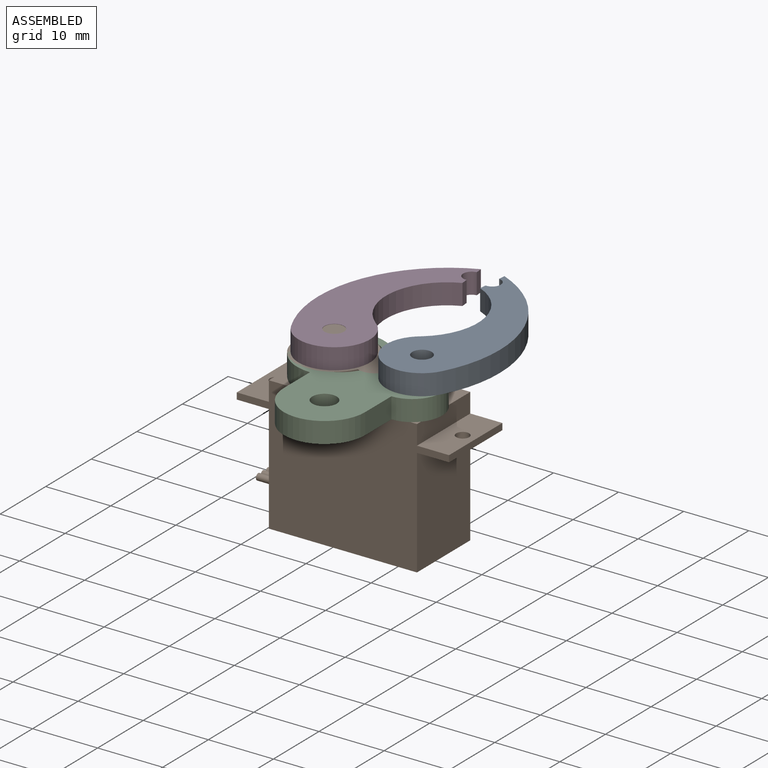
[diagram: assembled view]
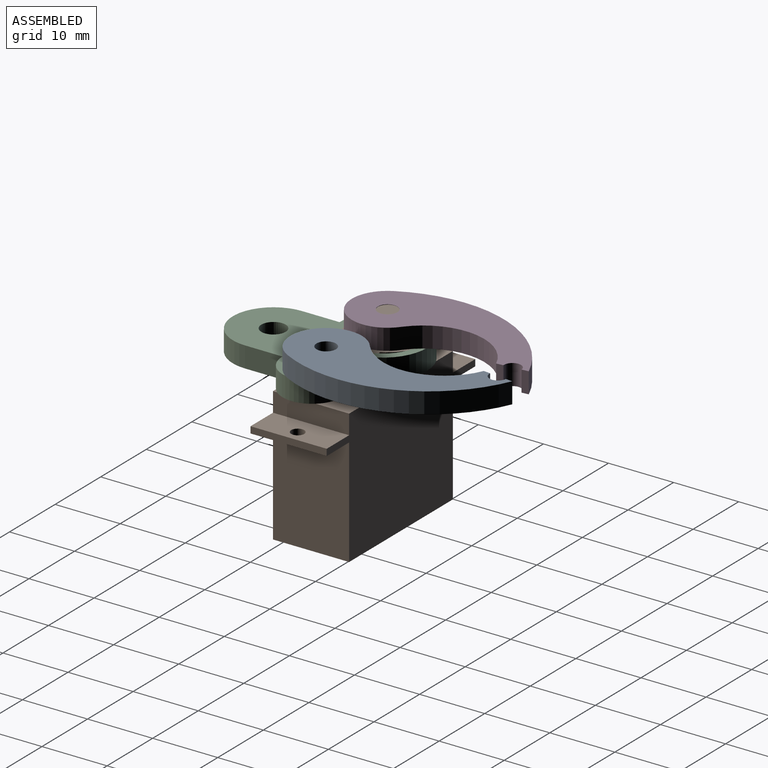
[diagram: assembled view, second angle]
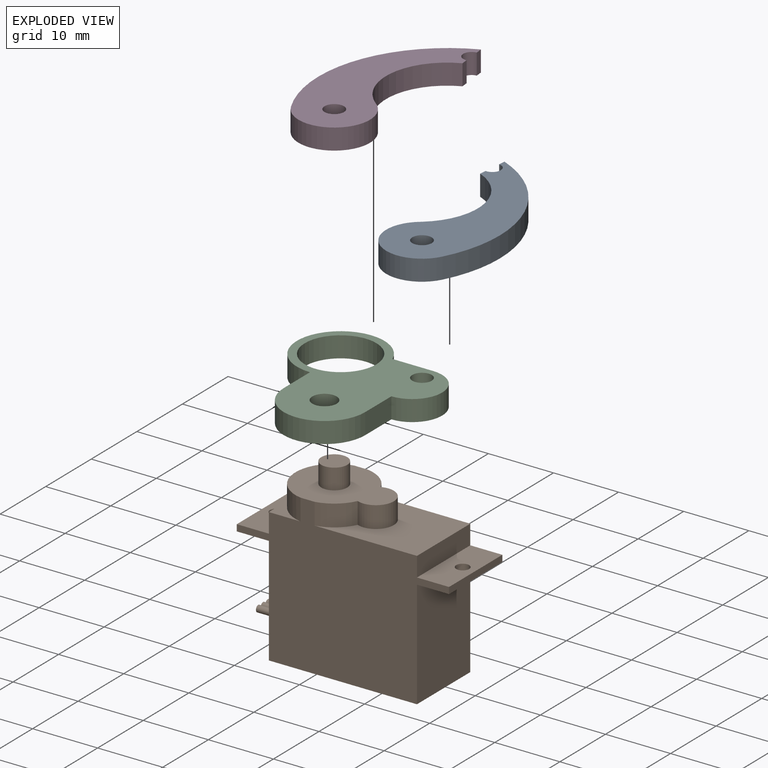
[diagram: exploded view]
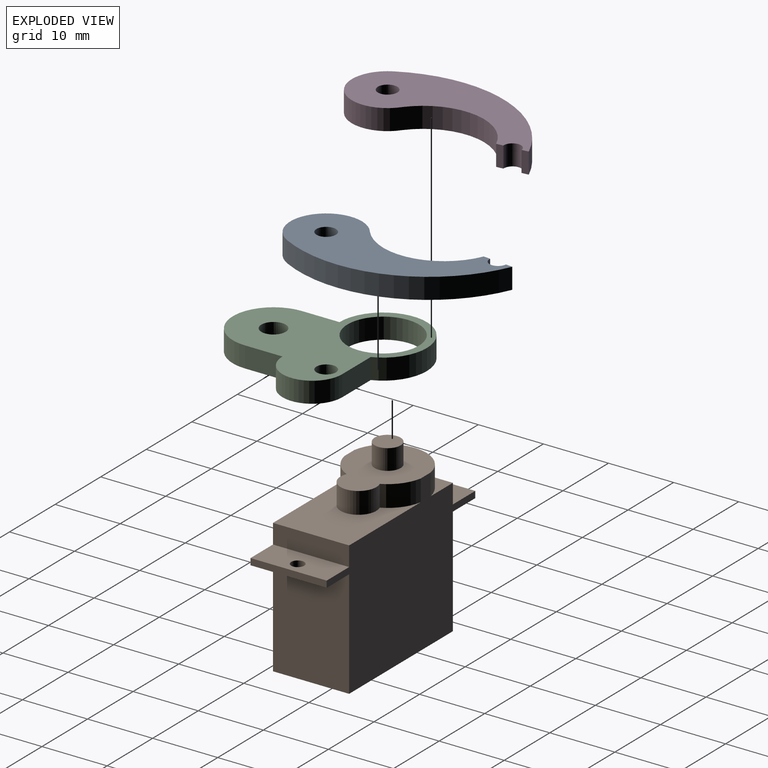
[diagram: exploded view, second angle]
ASSEMBLY  parts=4 mates=4
PART A: 9 faces, bbox 25.7x21.4x3.2 mm
  f0: cylinder r=5.5mm len=11mm, axis (0,0,-1), area 63.7mm2, adj f1,f6,f7,f8
  f1: cylinder r=9.39mm len=13.23mm, axis (0,0,-1), area 62mm2, adj f0,f2,f7,f8
  f2: plane 3.2x0.97mm, normal (0.37,0.93,0), area 3.4mm2, adj f1,f3,f7,f8
  f3: cylinder r=1.31mm len=3.2mm, axis (0,0,-1), area 13.2mm2, adj f2,f4,f7,f8
  f4: plane 3.2x0.97mm, normal (0.37,0.93,0), area 3.4mm2, adj f3,f6,f7,f8
  f5: cylinder r=1.5mm len=3.2mm, axis (0,0,-1), area 30.2mm2, adj f7,f8
  f6: cylinder r=19.93mm len=21.36mm, axis (0,0,-1), area 105.5mm2, adj f0,f4,f7,f8
  f7: plane 25.66x21.36mm, normal (0,0,1), area 216.6mm2, adj f0,f1,f2,f3,f4,f5,f6
  f8: plane 25.66x21.36mm, normal (0,0,-1), area 216.6mm2, adj f0,f1,f2,f3,f4,f5,f6
PART B: 31 faces, bbox 32.7x11.7x27.1 mm
  f0: plane 15.71x11.7mm, normal (0,0,1), area 125.7mm2, adj f3,f4,f6,f19,f20,f21
  f1: plane 5.85x4.86mm, normal (0,0,1), area 7.1mm2, adj f2,f4,f18
  f2: plane 11.7x3mm, normal (-1,0,0), area 35.1mm2, adj f1,f4,f6,f9,f17
  f3: plane 11.7x3mm, normal (1,0,0), area 35.1mm2, adj f0,f4,f6,f13
  f4: plane 32.6x23.9mm, normal (0,1,0), area 485.7mm2, adj f0,f1,f2,f3,f5,f7,f8,f10
  f5: plane 16.6x11.7mm, normal (-1,0,0), area 191.9mm2, adj f4,f6,f8,f16,f25,f27,f29
  f6: plane 32.6x23.9mm, normal (0,-1,0), area 485.7mm2, adj f0,f2,f3,f5,f7,f8,f9,f10
  f7: plane 16.6x11.7mm, normal (1,0,0), area 194.2mm2, adj f4,f6,f8,f12
  f8: plane 22.75x11.7mm, normal (0,0,-1), area 266.2mm2, adj f4,f5,f6,f7
  f9: plane 5.85x4.86mm, normal (0,0,1), area 7.1mm2, adj f2,f6,f18
  f10: plane 11.7x1mm, normal (1,0,0), area 11.7mm2, adj f4,f6,f12,f13
  f11: cylinder r=1mm len=2mm, axis (0,0,1), area 6.3mm2, adj f12,f13
  f12: plane 11.7x4.93mm, normal (0,0,-1), area 54.5mm2, adj f4,f6,f7,f10,f11
  f13: plane 11.7x4.93mm, normal (0,0,1), area 54.5mm2, adj f3,f4,f6,f10,f11
  f14: cylinder r=1mm len=2mm, axis (0,0,1), area 6.3mm2, adj f16,f17
  f15: plane 11.7x1mm, normal (-1,0,0), area 11.7mm2, adj f4,f6,f16,f17
  f16: plane 11.7x4.93mm, normal (0,0,-1), area 54.5mm2, adj f4,f5,f6,f14,f15
  f17: plane 11.7x4.93mm, normal (0,0,1), area 54.5mm2, adj f2,f4,f6,f14,f15
  f18: cylinder r=5.95mm len=11.7mm, axis (0,0,-1), area 54.5mm2, adj f1,f4,f6,f9,f22
  f19: cylinder r=5.95mm len=4.29mm, axis (0,0,-1), area 18.5mm2, adj f0,f6,f20,f22
  f20: cylinder r=2.75mm len=5.5mm, axis (0,0,-1), area 35.4mm2, adj f0,f19,f21,f22
  f21: cylinder r=5.95mm len=4.29mm, axis (0,0,-1), area 18.5mm2, adj f0,f4,f20,f22
  f22: plane 15.1x11.7mm, normal (0,0,1), area 113.8mm2, adj f4,f6,f18,f19,f20,f21,f23
  f23: cylinder r=2mm len=4mm, axis (0,0,-1), area 39.6mm2, adj f22,f24
  f24: plane 4x4mm, normal (0,0,1), area 12.6mm2, adj f23
  f25: cylinder r=0.5mm len=5mm, axis (1,0,0), area 15.7mm2, adj f5,f26
  f26: plane 1x1mm, normal (-1,0,0), area 0.8mm2, adj f25
  f27: cylinder r=0.5mm len=5mm, axis (1,0,0), area 15.7mm2, adj f5,f28
  f28: plane 1x1mm, normal (-1,0,0), area 0.8mm2, adj f27
  f29: cylinder r=0.5mm len=5mm, axis (1,0,0), area 15.7mm2, adj f5,f30
  f30: plane 1x1mm, normal (-1,0,0), area 0.8mm2, adj f29
PART C: 11 faces, bbox 23.8x25.4x3.2 mm
  f0: plane 5.75x3.2mm, normal (-1,0,0), area 18.4mm2, adj f1,f7,f8,f9
  f1: cylinder r=6.25mm len=12.5mm, axis (0,0,-1), area 62.8mm2, adj f0,f2,f8,f9
  f2: plane 5.75x3.2mm, normal (1,0,0), area 18.4mm2, adj f1,f3,f8,f9
  f3: cylinder r=4.59mm len=9.18mm, axis (0,0,-1), area 46.2mm2, adj f2,f4,f8,f9
  f4: plane 6.25x3.2mm, normal (0,1,0), area 20mm2, adj f3,f7,f8,f9
  f5: cylinder r=1.88mm len=3.75mm, axis (0,0,-1), area 37.7mm2, adj f8,f9
  f6: cylinder r=5.5mm len=11mm, axis (0,0,-1), area 110.6mm2, adj f8,f9
  f7: cylinder r=6.72mm len=13.44mm, axis (0,0,-1), area 93.2mm2, adj f0,f4,f8,f9
  f8: plane 25.44x23.81mm, normal (0,0,1), area 258.2mm2, adj f0,f1,f2,f3,f4,f5,f6,f7
  f9: plane 25.44x23.81mm, normal (0,0,-1), area 258.2mm2, adj f0,f1,f2,f3,f4,f5,f6,f7
  f10: cylinder r=1.5mm len=3.2mm, axis (0,0,1), area 30.2mm2, adj f8,f9
PART D: same geometry as A
PLACE A rot(axis=(0.52,-0.85,0),180deg) t=(11.5,-23.31,23.19)mm
PLACE B t=(-4.79,-12.06,10.49)mm fixed
PLACE C t=(-2.99,-24.53,13.59)mm
PLACE D rot(axis=(0,0,-1),62.8deg) t=(-18.46,-23.31,13.59)mm
MATE planar A.f0 <-> C.f10  axis (0,0,-1) through (3.26,-12.06,16.79)mm
MATE revolute D.f0 <-> B.f18  axis (0,0,-1) through (-10.22,-12.06,16.79)mm
MATE fastened C.f6 <-> B.f22  axis (0,0,1) through (-9.24,-12.06,16.79)mm
MATE cylindrical A.f0 <-> C.f10  axis (0,0,1) through (3.26,-12.06,16.79)mm
